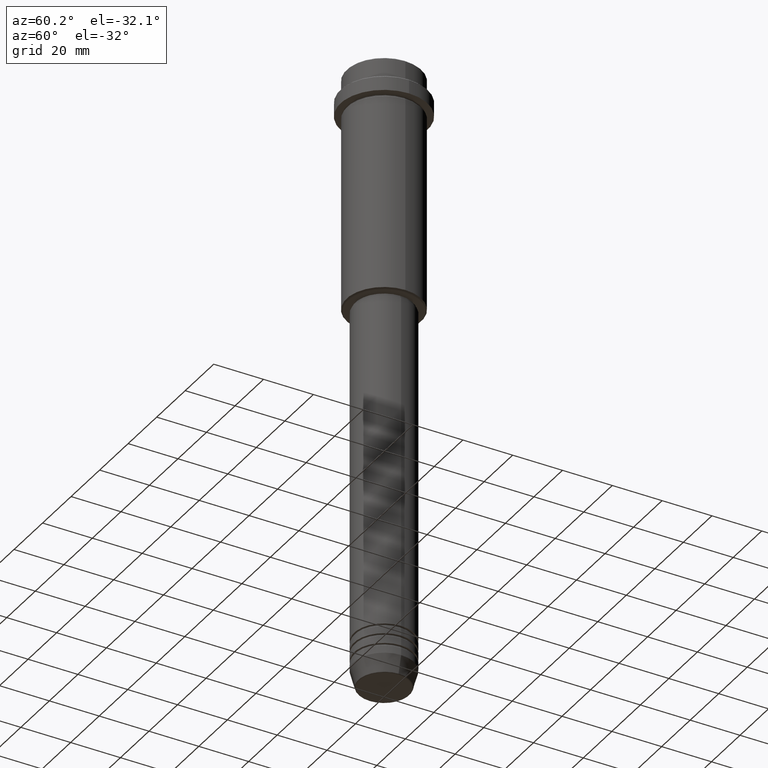
[diagram: clean part render]
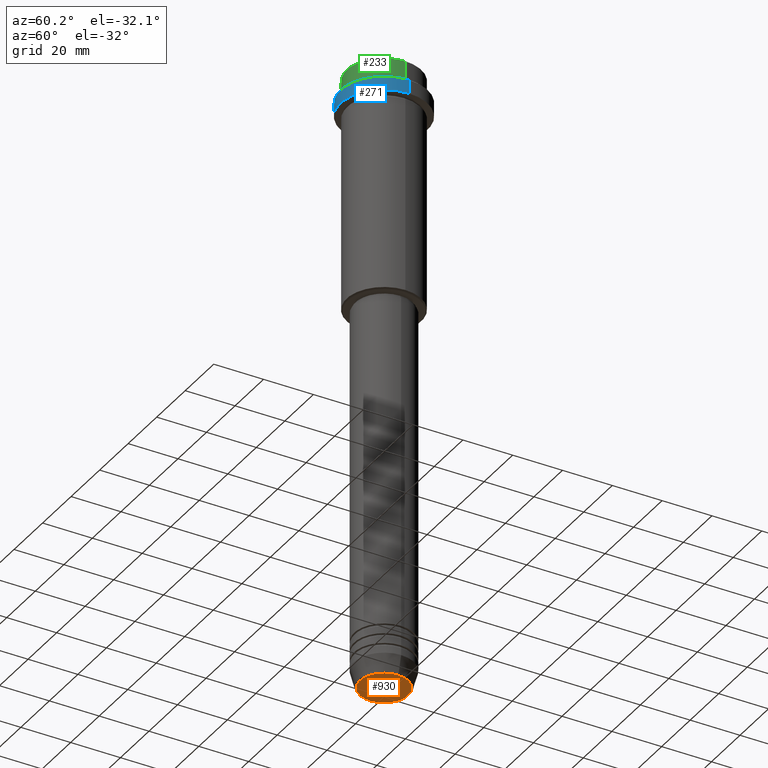
[diagram: same view with three faces highlighted in distinct colors, each labeled with its STEP entity id]
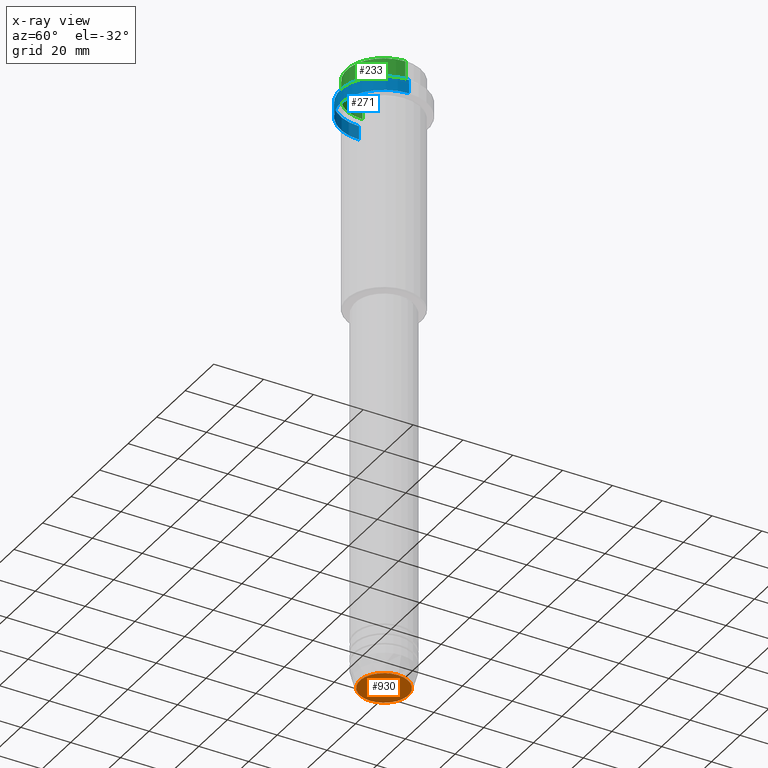
[diagram: x-ray of the same camera — body ghosted, the three highlighted faces saturated]
A machine part, auxiliary view with three faces highlighted in distinct colors.
The next image is the same camera in x-ray (body ghosted, the three faces saturated) — at least one of them is partly hidden behind the body in this view.
Their STEP definitions:

[orange] entity #930 — the highlighted planar face has unit normal (0, -0, 1).
#93 = CARTESIAN_POINT ( 'NONE',  ( -9.740692158992658278, 1.222463696683474999E-15, -250.0000000000000000 ) ) ;
#145 = VERTEX_POINT ( 'NONE', #93 ) ;
#170 = DIRECTION ( 'NONE',  ( 1.000000000000000000, 0.000000000000000000, 0.000000000000000000 ) ) ;
#231 = DIRECTION ( 'NONE',  ( 0.000000000000000000, -0.000000000000000000, 1.000000000000000000 ) ) ;
#236 = DIRECTION ( 'NONE',  ( 1.000000000000000000, 0.000000000000000000, 0.000000000000000000 ) ) ;
#281 = CIRCLE ( 'NONE', #626, 9.740692158992658278 ) ;
#323 = DIRECTION ( 'NONE',  ( 1.000000000000000000, 0.000000000000000000, 0.000000000000000000 ) ) ;
#328 = FACE_OUTER_BOUND ( 'NONE', #372, .T. ) ;
#372 = EDGE_LOOP ( 'NONE', ( #908, #1081 ) ) ;
#417 = AXIS2_PLACEMENT_3D ( 'NONE', #1414, #231, #323 ) ;
#506 = CARTESIAN_POINT ( 'NONE',  ( 0.000000000000000000, 0.000000000000000000, -250.0000000000000000 ) ) ;
#593 = EDGE_CURVE ( 'NONE', #145, #853, #281, .T. ) ;
#611 = CARTESIAN_POINT ( 'NONE',  ( 9.740692158992658278, 0.000000000000000000, -250.0000000000000000 ) ) ;
#626 = AXIS2_PLACEMENT_3D ( 'NONE', #1008, #904, #236 ) ;
#792 = CIRCLE ( 'NONE', #1351, 9.740692158992658278 ) ;
#853 = VERTEX_POINT ( 'NONE', #611 ) ;
#904 = DIRECTION ( 'NONE',  ( 0.000000000000000000, 0.000000000000000000, -1.000000000000000000 ) ) ;
#908 = ORIENTED_EDGE ( 'NONE', *, *, #1311, .T. ) ;
#930 = ADVANCED_FACE ( 'NONE', ( #328 ), #1306, .F. ) ;
#949 = DIRECTION ( 'NONE',  ( 0.000000000000000000, 0.000000000000000000, -1.000000000000000000 ) ) ;
#1008 = CARTESIAN_POINT ( 'NONE',  ( 0.000000000000000000, 0.000000000000000000, -250.0000000000000000 ) ) ;
#1081 = ORIENTED_EDGE ( 'NONE', *, *, #593, .T. ) ;
#1306 = PLANE ( 'NONE',  #417 ) ;
#1311 = EDGE_CURVE ( 'NONE', #853, #145, #792, .T. ) ;
#1351 = AXIS2_PLACEMENT_3D ( 'NONE', #506, #949, #170 ) ;
#1414 = CARTESIAN_POINT ( 'NONE',  ( 0.000000000000000000, 0.000000000000000000, -250.0000000000000000 ) ) ;

[blue] entity #271 — the highlighted cylindrical surface (partial cylindrical patch) has radius 17.5 mm, axis along (-0, -0, 1).
#102 = EDGE_CURVE ( 'NONE', #302, #1308, #529, .T. ) ;
#152 = VERTEX_POINT ( 'NONE', #644 ) ;
#185 = CARTESIAN_POINT ( 'NONE',  ( 0.000000000000000000, 0.000000000000000000, -15.00000000000000178 ) ) ;
#198 = EDGE_LOOP ( 'NONE', ( #1407, #1097, #688, #1287 ) ) ;
#249 = CARTESIAN_POINT ( 'NONE',  ( 0.000000000000000000, 0.000000000000000000, 0.000000000000000000 ) ) ;
#271 = ADVANCED_FACE ( 'NONE', ( #1333 ), #886, .T. ) ;
#302 = VERTEX_POINT ( 'NONE', #1386 ) ;
#307 = CIRCLE ( 'NONE', #898, 17.50000000000000000 ) ;
#345 = DIRECTION ( 'NONE',  ( 1.000000000000000000, 0.000000000000000000, 0.000000000000000000 ) ) ;
#385 = EDGE_CURVE ( 'NONE', #152, #1308, #307, .T. ) ;
#399 = VECTOR ( 'NONE', #1320, 1000.000000000000000 ) ;
#444 = DIRECTION ( 'NONE',  ( -0.000000000000000000, -0.000000000000000000, 1.000000000000000000 ) ) ;
#529 = LINE ( 'NONE', #1391, #1134 ) ;
#597 = VERTEX_POINT ( 'NONE', #668 ) ;
#629 = CARTESIAN_POINT ( 'NONE',  ( 0.000000000000000000, 0.000000000000000000, -9.499999999999973355 ) ) ;
#644 = CARTESIAN_POINT ( 'NONE',  ( 17.50000000000000000, 0.000000000000000000, -9.499999999999973355 ) ) ;
#668 = CARTESIAN_POINT ( 'NONE',  ( 17.50000000000000000, 0.000000000000000000, -15.00000000000000178 ) ) ;
#688 = ORIENTED_EDGE ( 'NONE', *, *, #1340, .T. ) ;
#753 = CARTESIAN_POINT ( 'NONE',  ( 17.50000000000000000, 0.000000000000000000, 0.000000000000000000 ) ) ;
#826 = DIRECTION ( 'NONE',  ( -0.000000000000000000, -0.000000000000000000, 1.000000000000000000 ) ) ;
#852 = CIRCLE ( 'NONE', #1235, 17.50000000000000000 ) ;
#873 = AXIS2_PLACEMENT_3D ( 'NONE', #249, #444, #345 ) ;
#886 = CYLINDRICAL_SURFACE ( 'NONE', #873, 17.50000000000000000 ) ;
#898 = AXIS2_PLACEMENT_3D ( 'NONE', #629, #1153, #1378 ) ;
#916 = DIRECTION ( 'NONE',  ( 1.000000000000000000, 0.000000000000000000, 0.000000000000000000 ) ) ;
#1097 = ORIENTED_EDGE ( 'NONE', *, *, #1277, .T. ) ;
#1134 = VECTOR ( 'NONE', #1290, 1000.000000000000000 ) ;
#1153 = DIRECTION ( 'NONE',  ( 0.000000000000000000, 0.000000000000000000, -1.000000000000000000 ) ) ;
#1163 = CARTESIAN_POINT ( 'NONE',  ( -17.50000000000000000, 2.143131898507868248E-15, -9.499999999999973355 ) ) ;
#1184 = LINE ( 'NONE', #753, #399 ) ;
#1235 = AXIS2_PLACEMENT_3D ( 'NONE', #185, #826, #916 ) ;
#1277 = EDGE_CURVE ( 'NONE', #302, #597, #852, .T. ) ;
#1287 = ORIENTED_EDGE ( 'NONE', *, *, #385, .T. ) ;
#1290 = DIRECTION ( 'NONE',  ( -0.000000000000000000, -0.000000000000000000, 1.000000000000000000 ) ) ;
#1308 = VERTEX_POINT ( 'NONE', #1163 ) ;
#1320 = DIRECTION ( 'NONE',  ( -0.000000000000000000, -0.000000000000000000, 1.000000000000000000 ) ) ;
#1333 = FACE_OUTER_BOUND ( 'NONE', #198, .T. ) ;
#1340 = EDGE_CURVE ( 'NONE', #597, #152, #1184, .T. ) ;
#1378 = DIRECTION ( 'NONE',  ( 1.000000000000000000, 0.000000000000000000, 0.000000000000000000 ) ) ;
#1386 = CARTESIAN_POINT ( 'NONE',  ( -17.50000000000000000, 2.143131898507868248E-15, -15.00000000000000178 ) ) ;
#1391 = CARTESIAN_POINT ( 'NONE',  ( -17.50000000000000000, 2.143131898507868248E-15, 0.000000000000000000 ) ) ;
#1407 = ORIENTED_EDGE ( 'NONE', *, *, #102, .F. ) ;

[green] entity #233 — the highlighted cylindrical surface (partial cylindrical patch) has radius 15 mm, axis along (-0, -0, 1).
#11 = FACE_OUTER_BOUND ( 'NONE', #1061, .T. ) ;
#28 = DIRECTION ( 'NONE',  ( 1.000000000000000000, 0.000000000000000000, 0.000000000000000000 ) ) ;
#36 = ORIENTED_EDGE ( 'NONE', *, *, #957, .T. ) ;
#54 = VERTEX_POINT ( 'NONE', #315 ) ;
#59 = ORIENTED_EDGE ( 'NONE', *, *, #215, .T. ) ;
#143 = DIRECTION ( 'NONE',  ( 0.000000000000000000, 0.000000000000000000, -1.000000000000000000 ) ) ;
#155 = VECTOR ( 'NONE', #1035, 1000.000000000000000 ) ;
#207 = VERTEX_POINT ( 'NONE', #1213 ) ;
#215 = EDGE_CURVE ( 'NONE', #499, #54, #1337, .T. ) ;
#233 = ADVANCED_FACE ( 'NONE', ( #11 ), #1263, .T. ) ;
#234 = DIRECTION ( 'NONE',  ( -0.000000000000000000, -0.000000000000000000, 1.000000000000000000 ) ) ;
#315 = CARTESIAN_POINT ( 'NONE',  ( 15.00000000000000000, 0.000000000000000000, -0.5000000000000108802 ) ) ;
#316 = DIRECTION ( 'NONE',  ( -0.000000000000000000, -0.000000000000000000, 1.000000000000000000 ) ) ;
#382 = LINE ( 'NONE', #618, #1208 ) ;
#394 = DIRECTION ( 'NONE',  ( -0.000000000000000000, -0.000000000000000000, 1.000000000000000000 ) ) ;
#474 = ORIENTED_EDGE ( 'NONE', *, *, #801, .F. ) ;
#499 = VERTEX_POINT ( 'NONE', #883 ) ;
#541 = CARTESIAN_POINT ( 'NONE',  ( 0.000000000000000000, 0.000000000000000000, -7.999999999999998224 ) ) ;
#545 = CARTESIAN_POINT ( 'NONE',  ( 15.00000000000000000, 0.000000000000000000, 0.000000000000000000 ) ) ;
#591 = CARTESIAN_POINT ( 'NONE',  ( 0.000000000000000000, 0.000000000000000000, 0.000000000000000000 ) ) ;
#603 = EDGE_CURVE ( 'NONE', #54, #726, #1274, .T. ) ;
#605 = CARTESIAN_POINT ( 'NONE',  ( -15.00000000000000000, 1.836970198721029589E-15, -0.5000000000000108802 ) ) ;
#618 = CARTESIAN_POINT ( 'NONE',  ( -15.00000000000000000, 1.836970198721029589E-15, 0.000000000000000000 ) ) ;
#630 = AXIS2_PLACEMENT_3D ( 'NONE', #541, #316, #961 ) ;
#726 = VERTEX_POINT ( 'NONE', #605 ) ;
#772 = DIRECTION ( 'NONE',  ( 1.000000000000000000, 0.000000000000000000, 0.000000000000000000 ) ) ;
#801 = EDGE_CURVE ( 'NONE', #207, #726, #382, .T. ) ;
#824 = AXIS2_PLACEMENT_3D ( 'NONE', #1353, #143, #28 ) ;
#883 = CARTESIAN_POINT ( 'NONE',  ( 15.00000000000000000, 0.000000000000000000, -7.999999999999998224 ) ) ;
#957 = EDGE_CURVE ( 'NONE', #207, #499, #1160, .T. ) ;
#961 = DIRECTION ( 'NONE',  ( 1.000000000000000000, 0.000000000000000000, 0.000000000000000000 ) ) ;
#1035 = DIRECTION ( 'NONE',  ( -0.000000000000000000, -0.000000000000000000, 1.000000000000000000 ) ) ;
#1061 = EDGE_LOOP ( 'NONE', ( #474, #36, #59, #1254 ) ) ;
#1160 = CIRCLE ( 'NONE', #630, 15.00000000000000000 ) ;
#1208 = VECTOR ( 'NONE', #394, 1000.000000000000000 ) ;
#1213 = CARTESIAN_POINT ( 'NONE',  ( -15.00000000000000000, 1.836970198721029589E-15, -7.999999999999998224 ) ) ;
#1254 = ORIENTED_EDGE ( 'NONE', *, *, #603, .T. ) ;
#1263 = CYLINDRICAL_SURFACE ( 'NONE', #1345, 15.00000000000000000 ) ;
#1274 = CIRCLE ( 'NONE', #824, 15.00000000000000000 ) ;
#1337 = LINE ( 'NONE', #545, #155 ) ;
#1345 = AXIS2_PLACEMENT_3D ( 'NONE', #591, #234, #772 ) ;
#1353 = CARTESIAN_POINT ( 'NONE',  ( 0.000000000000000000, 0.000000000000000000, -0.5000000000000108802 ) ) ;